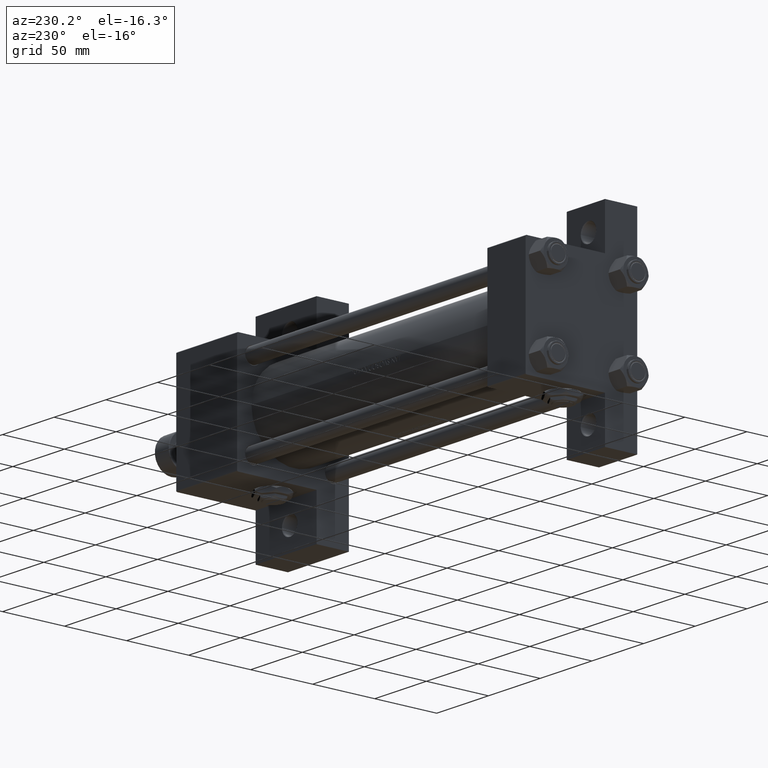
[diagram: clean part render]
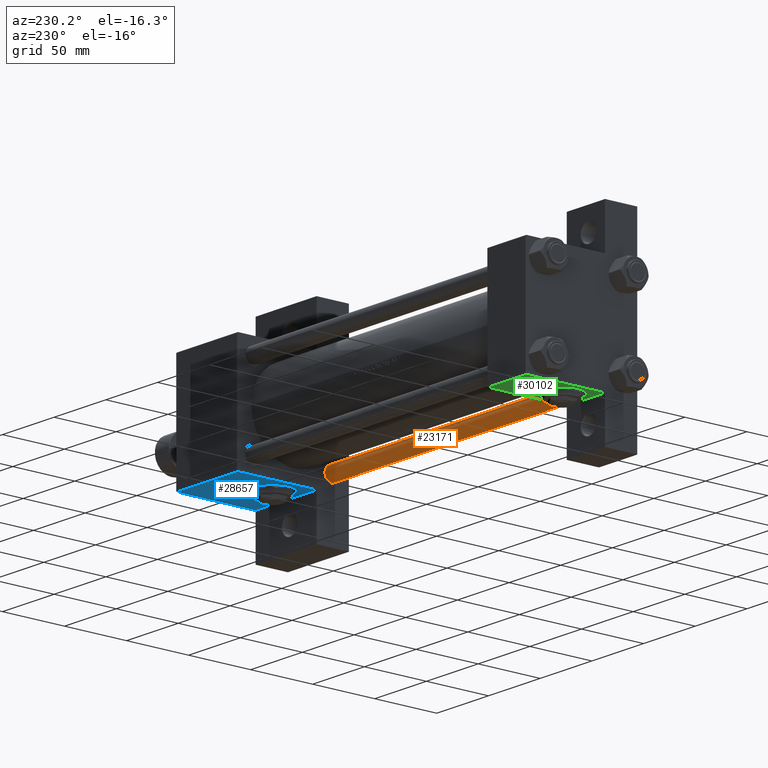
[diagram: same view with three faces highlighted in distinct colors, each labeled with its STEP entity id]
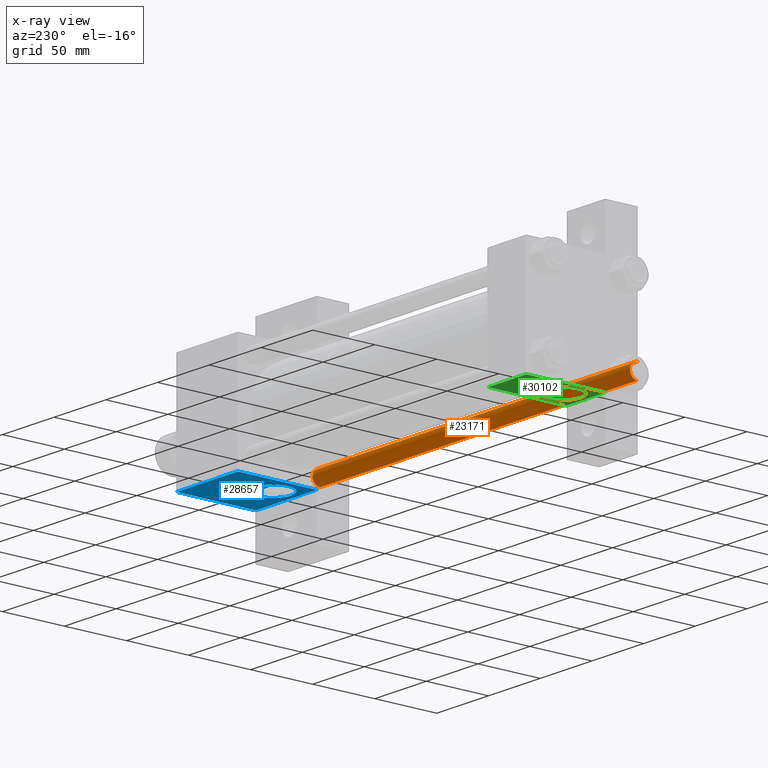
[diagram: x-ray of the same camera — body ghosted, the three highlighted faces saturated]
A machine part, auxiliary view with three faces highlighted in distinct colors.
The next image is the same camera in x-ray (body ghosted, the three faces saturated) — at least one of them is partly hidden behind the body in this view.
Their STEP definitions:

[orange] entity #23171 — the highlighted cylindrical surface (edge-blend (fillet) strip) has radius 6 mm, axis along (-1, 0, 0).
#1765 = DIRECTION ( 'NONE',  ( -0.000000000000000000, -0.000000000000000000, -1.000000000000000000 ) ) ;
#1901 = ORIENTED_EDGE ( 'NONE', *, *, #33996, .T. ) ;
#2011 = AXIS2_PLACEMENT_3D ( 'NONE', #32028, #13750, #48210 ) ;
#5588 = LINE ( 'NONE', #6339, #22509 ) ;
#6339 = CARTESIAN_POINT ( 'NONE',  ( -6.000000000000000888, 0.000000000000000000, 308.0000000000000000 ) ) ;
#12708 = VERTEX_POINT ( 'NONE', #13290 ) ;
#13097 = ORIENTED_EDGE ( 'NONE', *, *, #38886, .F. ) ;
#13287 = CARTESIAN_POINT ( 'NONE',  ( 0.000000000000000000, 0.000000000000000000, 308.0000000000000000 ) ) ;
#13290 = CARTESIAN_POINT ( 'NONE',  ( -6.000000000000000888, 0.000000000000000000, 307.4999999999999432 ) ) ;
#13540 = FACE_OUTER_BOUND ( 'NONE', #38283, .T. ) ;
#13750 = DIRECTION ( 'NONE',  ( 0.000000000000000000, 0.000000000000000000, -1.000000000000000000 ) ) ;
#15591 = CARTESIAN_POINT ( 'NONE',  ( -6.000000000000000888, 0.000000000000000000, 0.5000000000000559552 ) ) ;
#15598 = ORIENTED_EDGE ( 'NONE', *, *, #32570, .T. ) ;
#16369 = CARTESIAN_POINT ( 'NONE',  ( 0.000000000000000000, 0.000000000000000000, 0.5000000000000559552 ) ) ;
#16598 = DIRECTION ( 'NONE',  ( -1.000000000000000000, 0.000000000000000000, 0.000000000000000000 ) ) ;
#17355 = DIRECTION ( 'NONE',  ( -0.000000000000000000, -0.000000000000000000, -1.000000000000000000 ) ) ;
#17414 = AXIS2_PLACEMENT_3D ( 'NONE', #13287, #17355, #16598 ) ;
#17511 = CARTESIAN_POINT ( 'NONE',  ( 6.000000000000000888, 7.347880794884120722E-16, 308.0000000000000000 ) ) ;
#21172 = CYLINDRICAL_SURFACE ( 'NONE', #17414, 6.000000000000000888 ) ;
#22068 = DIRECTION ( 'NONE',  ( -0.000000000000000000, -0.000000000000000000, -1.000000000000000000 ) ) ;
#22509 = VECTOR ( 'NONE', #22068, 1000.000000000000000 ) ;
#23171 = ADVANCED_FACE ( 'NONE', ( #13540 ), #21172, .T. ) ;
#24078 = CIRCLE ( 'NONE', #31489, 6.000000000000000888 ) ;
#28243 = VERTEX_POINT ( 'NONE', #49353 ) ;
#31489 = AXIS2_PLACEMENT_3D ( 'NONE', #16369, #48011, #43973 ) ;
#31973 = LINE ( 'NONE', #17511, #36431 ) ;
#32028 = CARTESIAN_POINT ( 'NONE',  ( 0.000000000000000000, 0.000000000000000000, 307.4999999999999432 ) ) ;
#32570 = EDGE_CURVE ( 'NONE', #45198, #45320, #24078, .T. ) ;
#33996 = EDGE_CURVE ( 'NONE', #12708, #45198, #5588, .T. ) ;
#36431 = VECTOR ( 'NONE', #1765, 1000.000000000000000 ) ;
#37663 = CIRCLE ( 'NONE', #2011, 6.000000000000000888 ) ;
#38283 = EDGE_LOOP ( 'NONE', ( #13097, #45586, #1901, #15598 ) ) ;
#38886 = EDGE_CURVE ( 'NONE', #28243, #45320, #31973, .T. ) ;
#43710 = CARTESIAN_POINT ( 'NONE',  ( 6.000000000000000888, 7.347880794884120722E-16, 0.5000000000000559552 ) ) ;
#43973 = DIRECTION ( 'NONE',  ( 1.000000000000000000, 0.000000000000000000, 0.000000000000000000 ) ) ;
#45198 = VERTEX_POINT ( 'NONE', #15591 ) ;
#45320 = VERTEX_POINT ( 'NONE', #43710 ) ;
#45586 = ORIENTED_EDGE ( 'NONE', *, *, #47384, .T. ) ;
#47384 = EDGE_CURVE ( 'NONE', #28243, #12708, #37663, .T. ) ;
#48011 = DIRECTION ( 'NONE',  ( -0.000000000000000000, -0.000000000000000000, 1.000000000000000000 ) ) ;
#48210 = DIRECTION ( 'NONE',  ( 1.000000000000000000, 0.000000000000000000, 0.000000000000000000 ) ) ;
#49353 = CARTESIAN_POINT ( 'NONE',  ( 6.000000000000000888, 7.347880794884120722E-16, 307.4999999999999432 ) ) ;

[blue] entity #28657 — the highlighted planar face has unit normal (0, 0, -1).
#2067 = ORIENTED_EDGE ( 'NONE', *, *, #28161, .F. ) ;
#2358 = CARTESIAN_POINT ( 'NONE',  ( 337.9999999999999432, 45.00000000000001421, 44.49999999999994316 ) ) ;
#2493 = CARTESIAN_POINT ( 'NONE',  ( 337.9999999999999432, 44.99999999999992895, -19.00000000000000000 ) ) ;
#2910 = PLANE ( 'NONE',  #19218 ) ;
#3156 = DIRECTION ( 'NONE',  ( -0.000000000000000000, 1.000000000000000000, 0.000000000000000000 ) ) ;
#6889 = LINE ( 'NONE', #25440, #26460 ) ;
#7577 = LINE ( 'NONE', #34480, #9445 ) ;
#9212 = LINE ( 'NONE', #2358, #39162 ) ;
#9332 = CARTESIAN_POINT ( 'NONE',  ( 278.9999999999999432, 45.00000000000001421, -18.99999999999997513 ) ) ;
#9445 = VECTOR ( 'NONE', #45860, 1000.000000000000000 ) ;
#9835 = DIRECTION ( 'NONE',  ( 0.000000000000000000, 0.000000000000000000, 1.000000000000000000 ) ) ;
#13409 = ORIENTED_EDGE ( 'NONE', *, *, #18922, .T. ) ;
#13887 = AXIS2_PLACEMENT_3D ( 'NONE', #46450, #19118, #23169 ) ;
#14523 = VERTEX_POINT ( 'NONE', #22924 ) ;
#14588 = DIRECTION ( 'NONE',  ( 0.000000000000000000, -0.000000000000000000, 1.000000000000000000 ) ) ;
#14828 = VERTEX_POINT ( 'NONE', #19309 ) ;
#15818 = EDGE_LOOP ( 'NONE', ( #30104, #37296, #19779, #13409 ) ) ;
#18922 = EDGE_CURVE ( 'NONE', #24731, #29145, #7577, .T. ) ;
#19118 = DIRECTION ( 'NONE',  ( 0.000000000000000000, 1.000000000000000000, 0.000000000000000000 ) ) ;
#19218 = AXIS2_PLACEMENT_3D ( 'NONE', #49543, #3156, #14588 ) ;
#19309 = CARTESIAN_POINT ( 'NONE',  ( 299.0000000000000000, 45.00000000000001421, -15.00000000000002487 ) ) ;
#19779 = ORIENTED_EDGE ( 'NONE', *, *, #27464, .T. ) ;
#20050 = CARTESIAN_POINT ( 'NONE',  ( 337.9999999999999432, 45.00000000000001421, 44.49999999999994316 ) ) ;
#20688 = CARTESIAN_POINT ( 'NONE',  ( 278.9999999999999432, 45.00000000000001421, 45.00000000000000000 ) ) ;
#21349 = EDGE_CURVE ( 'NONE', #40828, #43018, #9212, .T. ) ;
#22201 = FACE_OUTER_BOUND ( 'NONE', #15818, .T. ) ;
#22924 = CARTESIAN_POINT ( 'NONE',  ( 299.0000000000000000, 45.00000000000001421, 15.00000000000002487 ) ) ;
#23092 = VECTOR ( 'NONE', #43225, 1000.000000000000000 ) ;
#23169 = DIRECTION ( 'NONE',  ( 0.000000000000000000, 0.000000000000000000, 1.000000000000000000 ) ) ;
#24731 = VERTEX_POINT ( 'NONE', #2493 ) ;
#25440 = CARTESIAN_POINT ( 'NONE',  ( 337.9999999999999432, 45.00000000000001421, 45.00000000000000000 ) ) ;
#25717 = AXIS2_PLACEMENT_3D ( 'NONE', #44050, #44564, #9835 ) ;
#26460 = VECTOR ( 'NONE', #34034, 1000.000000000000000 ) ;
#27464 = EDGE_CURVE ( 'NONE', #43018, #24731, #6889, .T. ) ;
#28161 = EDGE_CURVE ( 'NONE', #14828, #14523, #41842, .T. ) ;
#28657 = ADVANCED_FACE ( 'NONE', ( #34594, #22201 ), #2910, .T. ) ;
#29145 = VERTEX_POINT ( 'NONE', #9332 ) ;
#30104 = ORIENTED_EDGE ( 'NONE', *, *, #47867, .F. ) ;
#31350 = LINE ( 'NONE', #20688, #23092 ) ;
#34034 = DIRECTION ( 'NONE',  ( 0.000000000000000000, 0.000000000000000000, -1.000000000000000000 ) ) ;
#34480 = CARTESIAN_POINT ( 'NONE',  ( 278.9999999999999432, 45.00000000000001421, -19.00000000000000000 ) ) ;
#34594 = FACE_BOUND ( 'NONE', #45964, .T. ) ;
#37296 = ORIENTED_EDGE ( 'NONE', *, *, #21349, .T. ) ;
#39162 = VECTOR ( 'NONE', #44195, 1000.000000000000000 ) ;
#39771 = CIRCLE ( 'NONE', #13887, 15.00000000000002487 ) ;
#40349 = ORIENTED_EDGE ( 'NONE', *, *, #42646, .F. ) ;
#40828 = VERTEX_POINT ( 'NONE', #43964 ) ;
#41842 = CIRCLE ( 'NONE', #25717, 15.00000000000002487 ) ;
#42646 = EDGE_CURVE ( 'NONE', #14523, #14828, #39771, .T. ) ;
#43018 = VERTEX_POINT ( 'NONE', #20050 ) ;
#43225 = DIRECTION ( 'NONE',  ( 0.000000000000000000, 0.000000000000000000, -1.000000000000000000 ) ) ;
#43964 = CARTESIAN_POINT ( 'NONE',  ( 278.9999999999999432, 45.00000000000001421, 44.49999999999994316 ) ) ;
#44050 = CARTESIAN_POINT ( 'NONE',  ( 299.0000000000000000, 45.00000000000001421, 0.000000000000000000 ) ) ;
#44195 = DIRECTION ( 'NONE',  ( 1.000000000000000000, 0.000000000000000000, 0.000000000000000000 ) ) ;
#44564 = DIRECTION ( 'NONE',  ( 0.000000000000000000, 1.000000000000000000, 0.000000000000000000 ) ) ;
#45860 = DIRECTION ( 'NONE',  ( -1.000000000000000000, 1.411300455031978640E-15, -0.000000000000000000 ) ) ;
#45964 = EDGE_LOOP ( 'NONE', ( #40349, #2067 ) ) ;
#46450 = CARTESIAN_POINT ( 'NONE',  ( 299.0000000000000000, 45.00000000000001421, 0.000000000000000000 ) ) ;
#47867 = EDGE_CURVE ( 'NONE', #40828, #29145, #31350, .T. ) ;
#49543 = CARTESIAN_POINT ( 'NONE',  ( 337.9999999999999432, 45.00000000000001421, 45.00000000000000000 ) ) ;

[green] entity #30102 — the highlighted planar face has unit normal (0, 0, -1).
#1382 = CARTESIAN_POINT ( 'NONE',  ( 37.00000000000000000, 44.99999999999998579, 44.50000000000001421 ) ) ;
#2320 = DIRECTION ( 'NONE',  ( -0.000000000000000000, 1.000000000000000000, 0.000000000000000000 ) ) ;
#2403 = DIRECTION ( 'NONE',  ( 1.000000000000000000, 0.000000000000000000, 0.000000000000000000 ) ) ;
#2589 = DIRECTION ( 'NONE',  ( 0.000000000000000000, 0.000000000000000000, 1.000000000000000000 ) ) ;
#3194 = CARTESIAN_POINT ( 'NONE',  ( 18.50000000000000000, 44.99999999999998579, 15.00000000000000178 ) ) ;
#3911 = CARTESIAN_POINT ( 'NONE',  ( 1.030725107000828166E-14, 45.00000000000004263, -19.00000000000000355 ) ) ;
#3918 = VECTOR ( 'NONE', #34706, 1000.000000000000000 ) ;
#5457 = CARTESIAN_POINT ( 'NONE',  ( 0.000000000000000000, 44.99999999999998579, 44.50000000000001421 ) ) ;
#5785 = CIRCLE ( 'NONE', #49477, 15.00000000000000178 ) ;
#5997 = CARTESIAN_POINT ( 'NONE',  ( 37.00000000000001421, 45.00000000000002132, -18.99999999999999645 ) ) ;
#6824 = ORIENTED_EDGE ( 'NONE', *, *, #14751, .F. ) ;
#8973 = EDGE_CURVE ( 'NONE', #40290, #40572, #11358, .T. ) ;
#9125 = VECTOR ( 'NONE', #19411, 1000.000000000000000 ) ;
#10525 = EDGE_LOOP ( 'NONE', ( #27877, #6824 ) ) ;
#11119 = CARTESIAN_POINT ( 'NONE',  ( 0.000000000000000000, 44.99999999999998579, 45.00000000000001421 ) ) ;
#11358 = LINE ( 'NONE', #42778, #25043 ) ;
#11852 = DIRECTION ( 'NONE',  ( 0.000000000000000000, 0.000000000000000000, -1.000000000000000000 ) ) ;
#12363 = ORIENTED_EDGE ( 'NONE', *, *, #45243, .F. ) ;
#13739 = CARTESIAN_POINT ( 'NONE',  ( 37.00000000000000000, 44.99999999999998579, 45.00000000000001421 ) ) ;
#14378 = VERTEX_POINT ( 'NONE', #5457 ) ;
#14751 = EDGE_CURVE ( 'NONE', #33319, #32354, #5785, .T. ) ;
#14974 = DIRECTION ( 'NONE',  ( 0.000000000000000000, 0.000000000000000000, 1.000000000000000000 ) ) ;
#15360 = VECTOR ( 'NONE', #2403, 1000.000000000000000 ) ;
#16625 = CARTESIAN_POINT ( 'NONE',  ( 0.000000000000000000, 44.99999999999998579, -18.99999999999997513 ) ) ;
#17093 = EDGE_LOOP ( 'NONE', ( #12363, #23782, #28395, #20544 ) ) ;
#19411 = DIRECTION ( 'NONE',  ( 1.000000000000000000, -3.750753461571474452E-16, 0.000000000000000000 ) ) ;
#20544 = ORIENTED_EDGE ( 'NONE', *, *, #8973, .T. ) ;
#21359 = FACE_OUTER_BOUND ( 'NONE', #17093, .T. ) ;
#21866 = PLANE ( 'NONE',  #41149 ) ;
#22002 = CARTESIAN_POINT ( 'NONE',  ( 18.50000000000000355, 44.99999999999998579, -15.00000000000000178 ) ) ;
#23782 = ORIENTED_EDGE ( 'NONE', *, *, #31072, .F. ) ;
#24736 = LINE ( 'NONE', #48023, #15360 ) ;
#25043 = VECTOR ( 'NONE', #11852, 1000.000000000000000 ) ;
#26177 = CARTESIAN_POINT ( 'NONE',  ( 18.50000000000000000, 44.99999999999998579, 0.000000000000000000 ) ) ;
#26270 = EDGE_CURVE ( 'NONE', #32354, #33319, #46609, .T. ) ;
#27877 = ORIENTED_EDGE ( 'NONE', *, *, #26270, .F. ) ;
#28395 = ORIENTED_EDGE ( 'NONE', *, *, #38492, .T. ) ;
#30102 = ADVANCED_FACE ( 'NONE', ( #21359, #41116 ), #21866, .T. ) ;
#30456 = CARTESIAN_POINT ( 'NONE',  ( 18.50000000000000000, 44.99999999999998579, 0.000000000000000000 ) ) ;
#30956 = DIRECTION ( 'NONE',  ( 0.000000000000000000, 1.000000000000000000, 0.000000000000000000 ) ) ;
#31072 = EDGE_CURVE ( 'NONE', #14378, #47917, #34212, .T. ) ;
#32354 = VERTEX_POINT ( 'NONE', #3194 ) ;
#33319 = VERTEX_POINT ( 'NONE', #22002 ) ;
#34212 = LINE ( 'NONE', #11119, #3918 ) ;
#34706 = DIRECTION ( 'NONE',  ( 0.000000000000000000, 0.000000000000000000, -1.000000000000000000 ) ) ;
#38492 = EDGE_CURVE ( 'NONE', #14378, #40290, #24736, .T. ) ;
#38639 = LINE ( 'NONE', #3911, #9125 ) ;
#40290 = VERTEX_POINT ( 'NONE', #1382 ) ;
#40572 = VERTEX_POINT ( 'NONE', #5997 ) ;
#41116 = FACE_BOUND ( 'NONE', #10525, .T. ) ;
#41149 = AXIS2_PLACEMENT_3D ( 'NONE', #13739, #2320, #49450 ) ;
#42778 = CARTESIAN_POINT ( 'NONE',  ( 37.00000000000000000, 44.99999999999998579, 45.00000000000001421 ) ) ;
#44926 = DIRECTION ( 'NONE',  ( 0.000000000000000000, 1.000000000000000000, 0.000000000000000000 ) ) ;
#45243 = EDGE_CURVE ( 'NONE', #47917, #40572, #38639, .T. ) ;
#45822 = AXIS2_PLACEMENT_3D ( 'NONE', #30456, #30956, #14974 ) ;
#46609 = CIRCLE ( 'NONE', #45822, 15.00000000000000178 ) ;
#47917 = VERTEX_POINT ( 'NONE', #16625 ) ;
#48023 = CARTESIAN_POINT ( 'NONE',  ( 37.00000000000000000, 44.99999999999998579, 44.50000000000001421 ) ) ;
#49450 = DIRECTION ( 'NONE',  ( 0.000000000000000000, -0.000000000000000000, 1.000000000000000000 ) ) ;
#49477 = AXIS2_PLACEMENT_3D ( 'NONE', #26177, #44926, #2589 ) ;